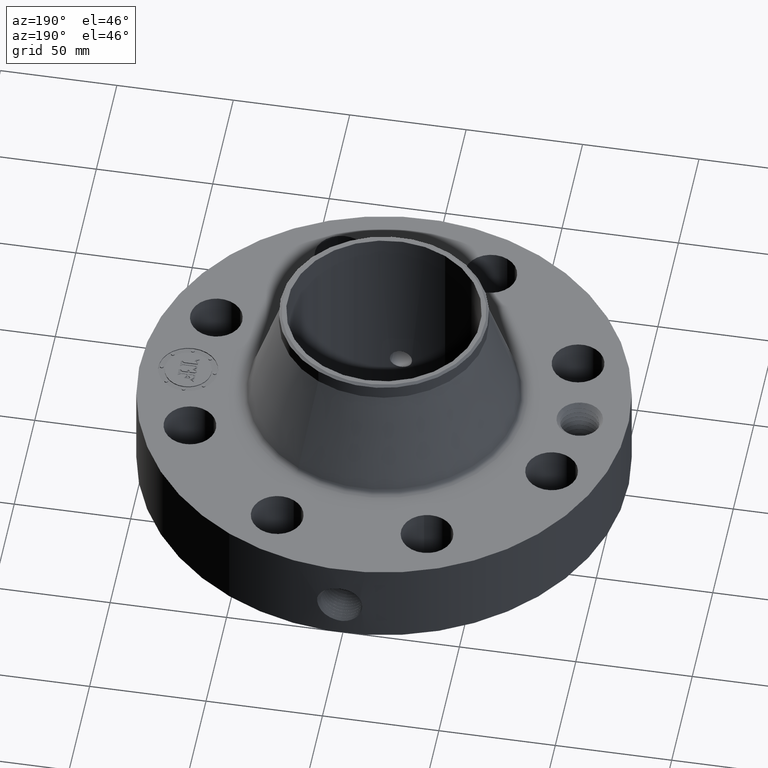
[diagram: clean part render]
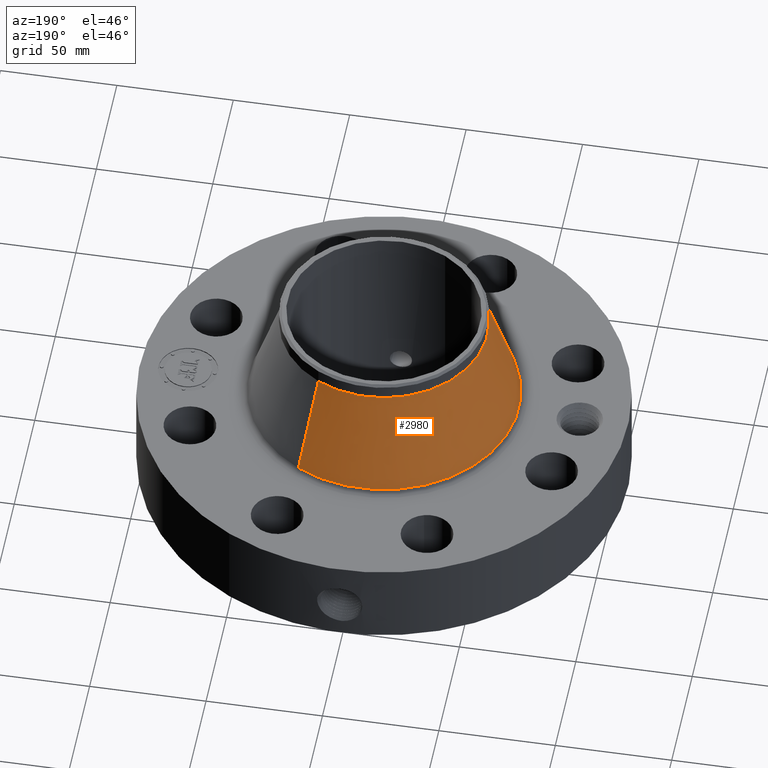
[diagram: same view with one face highlighted and labeled with its STEP entity id]
A machine part, auxiliary view. The second image highlights one B-rep face of the part: STEP entity #2980.
In plain terms, the highlighted conical surface has half-angle 17.916 deg.
Its self-contained STEP definition (entity closure, byte-faithful):
#2251=AXIS2_PLACEMENT_3D('Circle Axis2P3D',#2249,#2250,$) ;
#2941=AXIS2_PLACEMENT_3D('Cone Axis2P3D',#2938,#2939,#2940) ;
#2971=AXIS2_PLACEMENT_3D('Circle Axis2P3D',#2969,#2970,$) ;
#2227=CARTESIAN_POINT('Vertex',(1.09459484092,2.00364241655,1.83308493948)) ;
#2234=CARTESIAN_POINT('Vertex',(-1.09459484092,-2.00364241655,1.83308493948)) ;
#2249=CARTESIAN_POINT('Axis2P3D Location',(0.,0.,1.83308493948)) ;
#2938=CARTESIAN_POINT('Axis2P3D Location',(0.,0.,3.48211973689)) ;
#2943=CARTESIAN_POINT('Line Origine',(0.96679476674,1.76970594993,2.65760233818)) ;
#2947=CARTESIAN_POINT('Vertex',(0.838994692561,1.53576948331,3.48211973689)) ;
#2954=CARTESIAN_POINT('Vertex',(-0.838994692561,-1.53576948331,3.48211973689)) ;
#2957=CARTESIAN_POINT('Line Origine',(-0.96679476674,-1.76970594993,2.65760233818)) ;
#2969=CARTESIAN_POINT('Axis2P3D Location',(0.,0.,3.48211973689)) ;
#2250=DIRECTION('Axis2P3D Direction',(0.,0.,-0.0393700787402)) ;
#2939=DIRECTION('Axis2P3D Direction',(0.,0.,-0.0393700787402)) ;
#2940=DIRECTION('Axis2P3D XDirection',(-0.0188750212049,-0.0345504945626,0.)) ;
#2944=DIRECTION('Vector Direction',(0.00580643791928,0.0106286133181,-0.0374609257444)) ;
#2958=DIRECTION('Vector Direction',(-0.00580643791928,-0.0106286133181,-0.0374609257444)) ;
#2970=DIRECTION('Axis2P3D Direction',(0.,0.,-0.0393700787402)) ;
#2945=VECTOR('Line Direction',#2944,0.0393700787402) ;
#2959=VECTOR('Line Direction',#2958,0.0393700787402) ;
#2975=ORIENTED_EDGE('',*,*,#2253,.F.) ;
#2976=ORIENTED_EDGE('',*,*,#2961,.T.) ;
#2977=ORIENTED_EDGE('',*,*,#2973,.T.) ;
#2978=ORIENTED_EDGE('',*,*,#2949,.F.) ;
#2980=ADVANCED_FACE('PartBody',(#2979),#2942,.T.) ;
#2252=CIRCLE('generated circle',#2251,2.28313836619) ;
#2972=CIRCLE('generated circle',#2971,1.75000000001) ;
#2942=CONICAL_SURFACE('Cone',#2941,1.75000000001,0.312696513331) ;
#2253=EDGE_CURVE('',#2235,#2228,#2252,.T.) ;
#2949=EDGE_CURVE('',#2228,#2948,#2946,.F.) ;
#2961=EDGE_CURVE('',#2235,#2955,#2960,.F.) ;
#2973=EDGE_CURVE('',#2955,#2948,#2972,.T.) ;
#2974=EDGE_LOOP('',(#2975,#2976,#2977,#2978)) ;
#2979=FACE_OUTER_BOUND('',#2974,.T.) ;
#2946=LINE('Line',#2943,#2945) ;
#2960=LINE('Line',#2957,#2959) ;
#2228=VERTEX_POINT('',#2227) ;
#2235=VERTEX_POINT('',#2234) ;
#2948=VERTEX_POINT('',#2947) ;
#2955=VERTEX_POINT('',#2954) ;